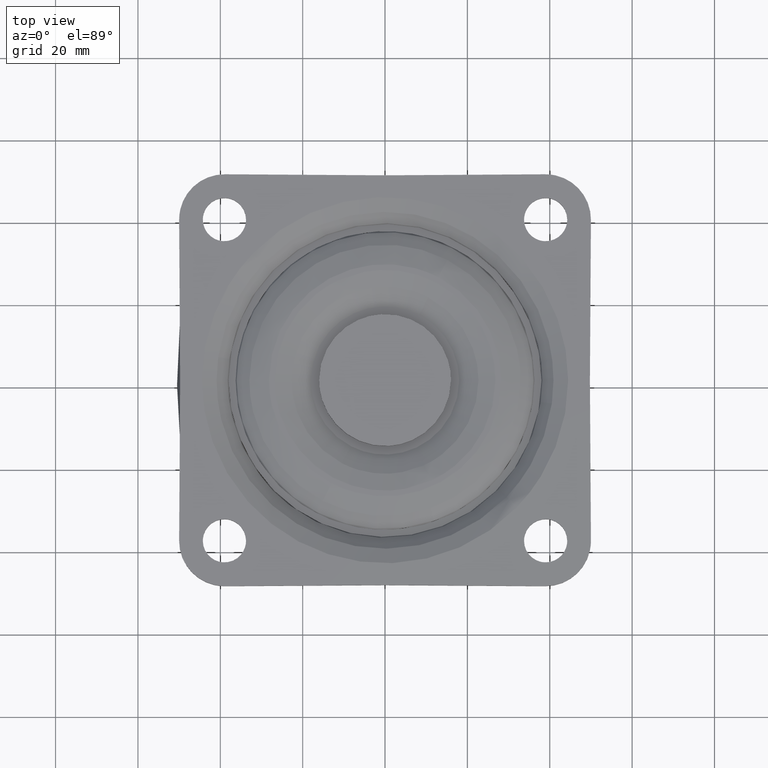
[diagram: clean part render]
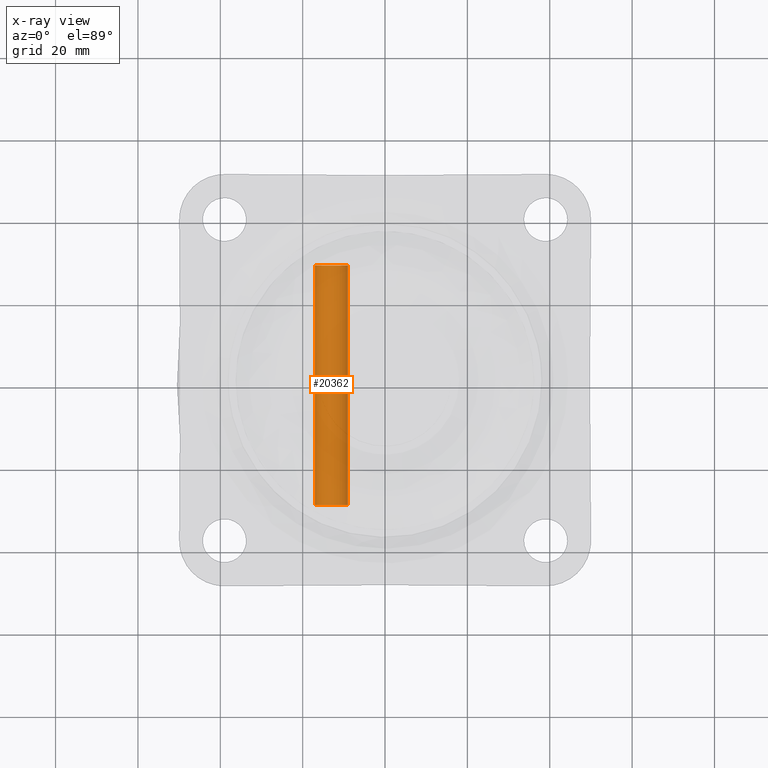
[diagram: x-ray — body ghosted, one internal face saturated and labeled with its STEP entity id]
A machine part, top view, then the same camera in x-ray: the body is ghosted and one INTERNAL B-rep face — a face not visible from any outside direction — is saturated and labeled: STEP entity #20362.
In plain terms, the highlighted face is a freeform B-spline surface patch.
Its self-contained STEP definition (entity closure, byte-faithful):
#20229=CARTESIAN_POINT('',(-12.999980000000001,-29.100000000000001,-73.499957000000009));
#20230=VERTEX_POINT('',#20229);
#20231=CARTESIAN_POINT('',(-16.992519193684849,-29.100000000000001,-69.744151158182120));
#20232=VERTEX_POINT('',#20231);
#20233=CARTESIAN_POINT('',(-12.999980000000001,-29.100000000000001,-73.499957000000009));
#20234=CARTESIAN_POINT('',(-16.762804267582457,-29.100000000000005,-73.499957000000009));
#20235=CARTESIAN_POINT('',(-16.992519193684856,-29.099999999999998,-69.744151158182120));
#20243=(BOUNDED_CURVE()B_SPLINE_CURVE(2,(#20233,#20234,#20235),.UNSPECIFIED.,.F.,.U.)B_SPLINE_CURVE_WITH_KNOTS((3,3),(0.500000000000000,0.739332962240123),.UNSPECIFIED.)CURVE()GEOMETRIC_REPRESENTATION_ITEM()RATIONAL_B_SPLINE_CURVE((1.0,0.719603993285328,0.976072041669247))REPRESENTATION_ITEM(''));
#20244=EDGE_CURVE('',#20230,#20232,#20243,.T.);
#20246=CARTESIAN_POINT('',(-9.007440806315143,-29.100000000000001,-69.255762841817869));
#20247=VERTEX_POINT('',#20246);
#20248=CARTESIAN_POINT('',(-9.007440806315142,-29.100000000000001,-69.255762841817884));
#20249=CARTESIAN_POINT('',(-8.999979999999999,-29.099999999999998,-69.377745946784231));
#20250=CARTESIAN_POINT('',(-8.999979999999999,-29.100000000000001,-69.499956999999995));
#20251=CARTESIAN_POINT('',(-8.999979999999999,-29.100000000000005,-73.499957000000009));
#20252=CARTESIAN_POINT('',(-12.999980000000001,-29.100000000000001,-73.499957000000009));
#20260=(BOUNDED_CURVE()B_SPLINE_CURVE(2,(#20248,#20249,#20250,#20251,#20252),.UNSPECIFIED.,.F.,.U.)B_SPLINE_CURVE_WITH_KNOTS((3,2,3),(0.239332962240123,0.250000000000000,0.500000000000000),.UNSPECIFIED.)CURVE()GEOMETRIC_REPRESENTATION_ITEM()RATIONAL_B_SPLINE_CURVE((0.976072041669248,0.987502787901220,1.0,0.707106781186548,1.0))REPRESENTATION_ITEM(''));
#20261=EDGE_CURVE('',#20247,#20230,#20260,.T.);
#20296=CARTESIAN_POINT('',(-9.007440806312532,-30.555000150000009,-69.255762841860573));
#20297=CARTESIAN_POINT('',(-8.763246648173105,-30.555000150000001,-73.248302035548051));
#20298=CARTESIAN_POINT('',(-12.755785841860570,-30.555000150000009,-73.492496193687458));
#20299=CARTESIAN_POINT('',(-16.748325035548035,-30.555000150000001,-73.736690351826894));
#20300=CARTESIAN_POINT('',(-16.992519193687460,-30.555000150000009,-69.744151158139417));
#20301=CARTESIAN_POINT('',(-9.007440806312532,30.591381153750000,-69.255762841860573));
#20302=CARTESIAN_POINT('',(-8.763246648173105,30.591381153750007,-73.248302035548051));
#20303=CARTESIAN_POINT('',(-12.755785841860570,30.591381153750000,-73.492496193687458));
#20304=CARTESIAN_POINT('',(-16.748325035548035,30.591381153750007,-73.736690351826894));
#20305=CARTESIAN_POINT('',(-16.992519193687460,30.591381153750000,-69.744151158139417));
#20313=(BOUNDED_SURFACE()B_SPLINE_SURFACE(2,1,((#20296,#20301),(#20297,#20302),(#20298,#20303),(#20299,#20304),(#20300,#20305)),.UNSPECIFIED.,.F.,.F.,.U.)B_SPLINE_SURFACE_WITH_KNOTS((3,2,3),(2,2),(0.0,6.627416997969506,13.254833995939009),(0.0,61.146381303750012),.UNSPECIFIED.)GEOMETRIC_REPRESENTATION_ITEM()RATIONAL_B_SPLINE_SURFACE(((1.0,1.0),(0.707106781186548,0.707106781186548),(1.0,1.0),(0.707106781186548,0.707106781186548),(1.0,1.0)))REPRESENTATION_ITEM('')SURFACE());
#20314=ORIENTED_EDGE('',*,*,#20261,.T.);
#20315=ORIENTED_EDGE('',*,*,#20244,.T.);
#20316=CARTESIAN_POINT('',(-16.992519193684849,29.100006000000000,-69.744151158182120));
#20317=VERTEX_POINT('',#20316);
#20318=CARTESIAN_POINT('',(-16.992519193684849,-29.100000000000001,-69.744151158182120));
#20319=CARTESIAN_POINT('',(-16.992519193684849,29.100006000000000,-69.744151158182120));
#20320=QUASI_UNIFORM_CURVE('',1,(#20318,#20319),.UNSPECIFIED.,.F.,.U.);
#20321=EDGE_CURVE('',#20232,#20317,#20320,.T.);
#20322=ORIENTED_EDGE('',*,*,#20321,.T.);
#20323=CARTESIAN_POINT('',(-12.999980000000001,29.100006000000000,-73.499957000000009));
#20324=VERTEX_POINT('',#20323);
#20325=CARTESIAN_POINT('',(-12.999980000000001,29.100006000000000,-73.499957000000009));
#20326=CARTESIAN_POINT('',(-16.762804267582457,29.100006000000000,-73.499957000000009));
#20327=CARTESIAN_POINT('',(-16.992519193684856,29.100005999999997,-69.744151158182120));
#20335=(BOUNDED_CURVE()B_SPLINE_CURVE(2,(#20325,#20326,#20327),.UNSPECIFIED.,.F.,.U.)B_SPLINE_CURVE_WITH_KNOTS((3,3),(0.500000000000000,0.739332962240123),.UNSPECIFIED.)CURVE()GEOMETRIC_REPRESENTATION_ITEM()RATIONAL_B_SPLINE_CURVE((1.0,0.719603993285328,0.976072041669247))REPRESENTATION_ITEM(''));
#20336=EDGE_CURVE('',#20324,#20317,#20335,.T.);
#20337=ORIENTED_EDGE('',*,*,#20336,.F.);
#20338=CARTESIAN_POINT('',(-9.007440806315143,29.100006000000000,-69.255762841817869));
#20339=VERTEX_POINT('',#20338);
#20340=CARTESIAN_POINT('',(-9.007440806315145,29.100006000000000,-69.255762841817869));
#20341=CARTESIAN_POINT('',(-8.999979999999999,29.100006000000004,-69.377745946784231));
#20342=CARTESIAN_POINT('',(-8.999979999999999,29.100006000000000,-69.499956999999995));
#20343=CARTESIAN_POINT('',(-8.999979999999999,29.100005999999997,-73.499957000000009));
#20344=CARTESIAN_POINT('',(-12.999980000000001,29.100006000000000,-73.499957000000009));
#20352=(BOUNDED_CURVE()B_SPLINE_CURVE(2,(#20340,#20341,#20342,#20343,#20344),.UNSPECIFIED.,.F.,.U.)B_SPLINE_CURVE_WITH_KNOTS((3,2,3),(0.239332962240123,0.250000000000000,0.500000000000000),.UNSPECIFIED.)CURVE()GEOMETRIC_REPRESENTATION_ITEM()RATIONAL_B_SPLINE_CURVE((0.976072041669247,0.987502787901220,1.0,0.707106781186548,1.0))REPRESENTATION_ITEM(''));
#20353=EDGE_CURVE('',#20339,#20324,#20352,.T.);
#20354=ORIENTED_EDGE('',*,*,#20353,.F.);
#20355=CARTESIAN_POINT('',(-9.007440806315143,-29.100000000000001,-69.255762841817869));
#20356=CARTESIAN_POINT('',(-9.007440806315143,29.100006000000000,-69.255762841817869));
#20357=QUASI_UNIFORM_CURVE('',1,(#20355,#20356),.UNSPECIFIED.,.F.,.U.);
#20358=EDGE_CURVE('',#20247,#20339,#20357,.T.);
#20359=ORIENTED_EDGE('',*,*,#20358,.F.);
#20360=EDGE_LOOP('',(#20314,#20315,#20322,#20337,#20354,#20359));
#20361=FACE_OUTER_BOUND('',#20360,.T.);
#20362=ADVANCED_FACE('',(#20361),#20313,.T.);